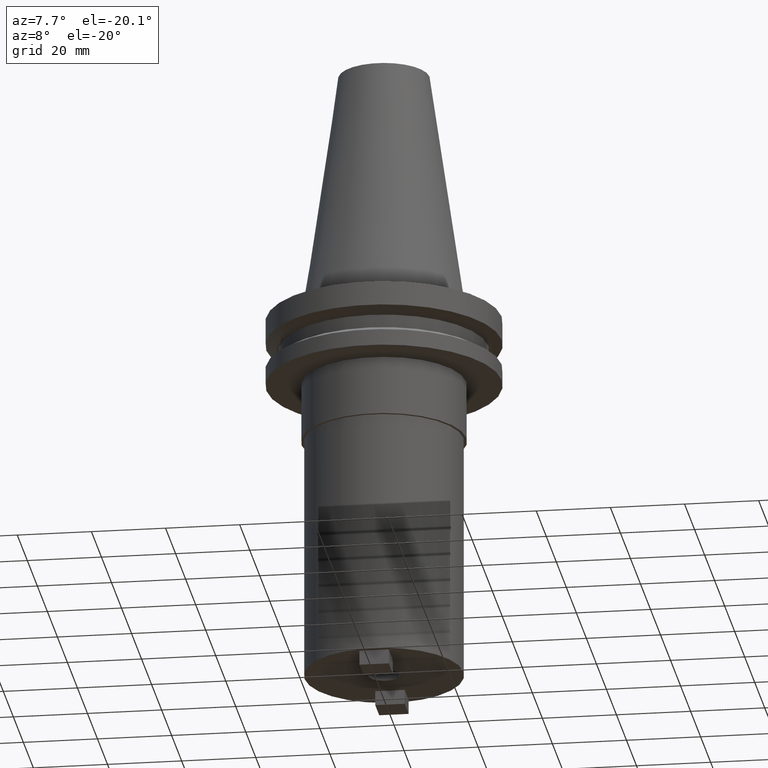
[diagram: clean part render]
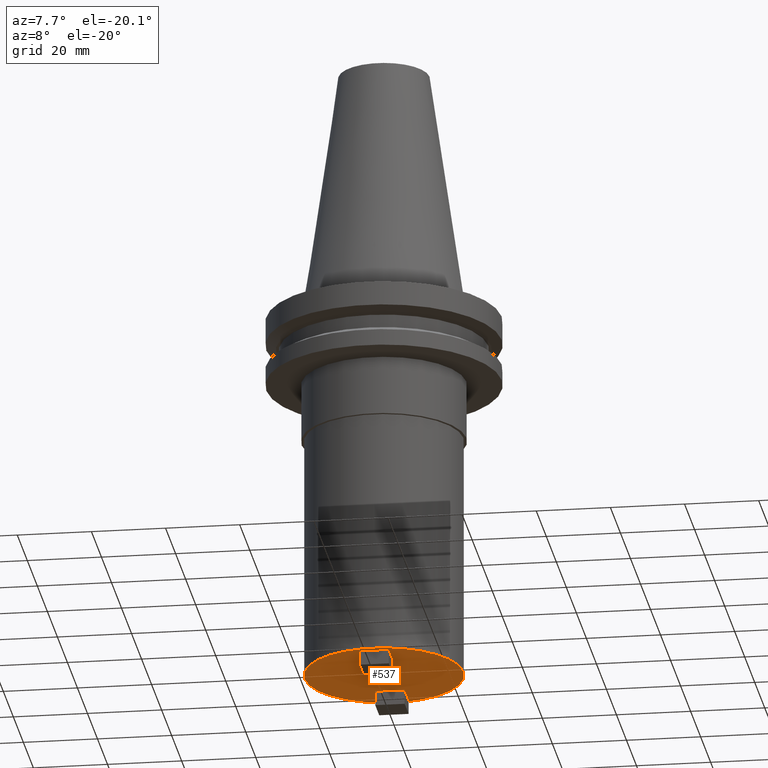
[diagram: same view with one face highlighted and labeled with its STEP entity id]
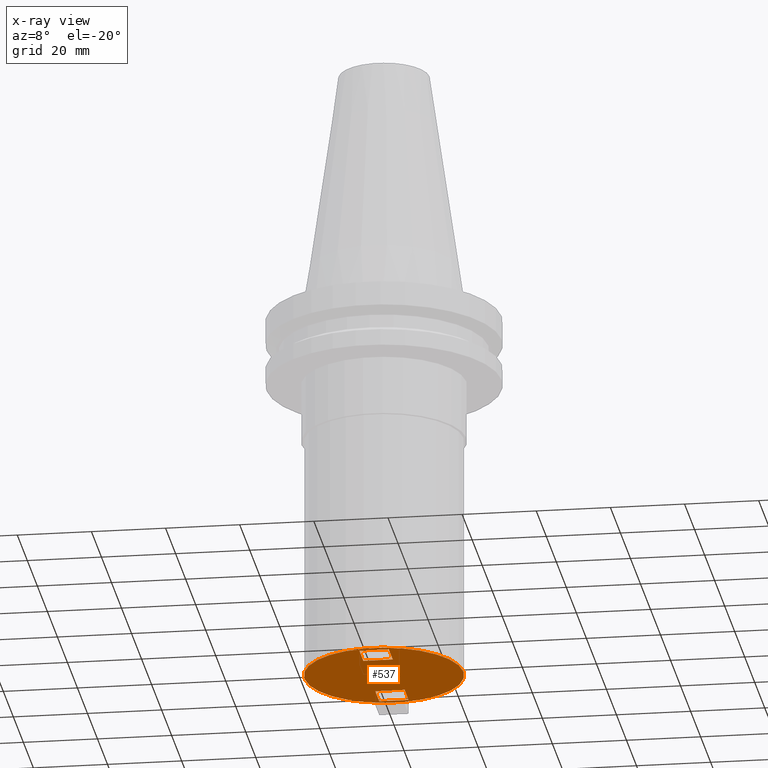
[diagram: x-ray of the same camera — body ghosted, the highlighted face saturated]
A machine part, auxiliary view. The second image highlights one B-rep face of the part: STEP entity #537.
The next image is the same camera in x-ray: the body ghosted, the highlighted face saturated — about 0% of this face is hidden behind the body in this view.
In plain terms, the highlighted planar face has unit normal (0, -0, 1).
Its self-contained STEP definition (entity closure, byte-faithful):
#27 = CARTESIAN_POINT ( 'NONE',  ( 4.215000000000006075, 0.000000000000000000, -101.5999999999999943 ) ) ;
#32 = DIRECTION ( 'NONE',  ( -0.000000000000000000, 1.000000000000000000, -0.000000000000000000 ) ) ;
#35 = CARTESIAN_POINT ( 'NONE',  ( -3.965000000000004299, 19.84000000000000341, -101.5999999999999943 ) ) ;
#39 = DIRECTION ( 'NONE',  ( 1.000000000000000000, 0.000000000000000000, 0.000000000000000000 ) ) ;
#41 = CARTESIAN_POINT ( 'NONE',  ( 3.964999999999995417, 19.84000000000000341, -101.5999999999999943 ) ) ;
#46 = FACE_BOUND ( 'NONE', #161, .T. ) ;
#53 = VECTOR ( 'NONE', #224, 1000.000000000000000 ) ;
#55 = AXIS2_PLACEMENT_3D ( 'NONE', #59, #805, #411 ) ;
#56 = ORIENTED_EDGE ( 'NONE', *, *, #363, .F. ) ;
#59 = CARTESIAN_POINT ( 'NONE',  ( 0.000000000000000000, 0.000000000000000000, -101.5999999999999943 ) ) ;
#69 = EDGE_CURVE ( 'NONE', #685, #597, #140, .T. ) ;
#75 = VECTOR ( 'NONE', #378, 1000.000000000000000 ) ;
#76 = AXIS2_PLACEMENT_3D ( 'NONE', #733, #1080, #575 ) ;
#83 = VERTEX_POINT ( 'NONE', #714 ) ;
#108 = EDGE_CURVE ( 'NONE', #248, #310, #1044, .T. ) ;
#116 = VERTEX_POINT ( 'NONE', #470 ) ;
#117 = EDGE_LOOP ( 'NONE', ( #1035, #1005 ) ) ;
#118 = CARTESIAN_POINT ( 'NONE',  ( 3.964999999999995417, 11.91000000000000192, -101.5999999999999943 ) ) ;
#124 = LINE ( 'NONE', #41, #75 ) ;
#130 = FACE_OUTER_BOUND ( 'NONE', #117, .T. ) ;
#134 = DIRECTION ( 'NONE',  ( -0.000000000000000000, 1.000000000000000000, -0.000000000000000000 ) ) ;
#140 = CIRCLE ( 'NONE', #929, 21.44999999999999929 ) ;
#154 = ORIENTED_EDGE ( 'NONE', *, *, #108, .F. ) ;
#161 = EDGE_LOOP ( 'NONE', ( #456, #901 ) ) ;
#188 = DIRECTION ( 'NONE',  ( -1.000000000000000000, 0.000000000000000000, 0.000000000000000000 ) ) ;
#192 = CARTESIAN_POINT ( 'NONE',  ( 3.964999999999995417, 19.84000000000000341, -101.5999999999999943 ) ) ;
#206 = ORIENTED_EDGE ( 'NONE', *, *, #706, .F. ) ;
#209 = VECTOR ( 'NONE', #855, 1000.000000000000000 ) ;
#224 = DIRECTION ( 'NONE',  ( -1.000000000000000000, -8.750181467726642358E-16, 0.000000000000000000 ) ) ;
#244 = DIRECTION ( 'NONE',  ( 0.000000000000000000, -1.000000000000000000, 0.000000000000000000 ) ) ;
#248 = VERTEX_POINT ( 'NONE', #995 ) ;
#308 = CARTESIAN_POINT ( 'NONE',  ( -3.965000000000004299, -11.90999999999999837, -101.5999999999999943 ) ) ;
#310 = VERTEX_POINT ( 'NONE', #849 ) ;
#314 = DIRECTION ( 'NONE',  ( 1.000000000000000000, 0.000000000000000000, 0.000000000000000000 ) ) ;
#316 = VECTOR ( 'NONE', #134, 1000.000000000000000 ) ;
#323 = CARTESIAN_POINT ( 'NONE',  ( -21.44999999999999929, 2.626867384171072557E-15, -101.5999999999999943 ) ) ;
#340 = DIRECTION ( 'NONE',  ( 1.000000000000000000, -0.000000000000000000, -0.000000000000000000 ) ) ;
#361 = LINE ( 'NONE', #118, #514 ) ;
#363 = EDGE_CURVE ( 'NONE', #83, #837, #361, .T. ) ;
#375 = EDGE_CURVE ( 'NONE', #587, #83, #931, .T. ) ;
#378 = DIRECTION ( 'NONE',  ( 1.000000000000000000, -0.000000000000000000, -0.000000000000000000 ) ) ;
#384 = DIRECTION ( 'NONE',  ( 1.000000000000000000, 0.000000000000000000, 0.000000000000000000 ) ) ;
#385 = AXIS2_PLACEMENT_3D ( 'NONE', #697, #787, #384 ) ;
#393 = CARTESIAN_POINT ( 'NONE',  ( 3.964999999999995417, 19.84000000000000341, -101.5999999999999943 ) ) ;
#394 = EDGE_CURVE ( 'NONE', #837, #457, #609, .T. ) ;
#407 = ORIENTED_EDGE ( 'NONE', *, *, #721, .F. ) ;
#411 = DIRECTION ( 'NONE',  ( 1.000000000000000000, 0.000000000000000000, 0.000000000000000000 ) ) ;
#422 = LINE ( 'NONE', #654, #628 ) ;
#439 = ORIENTED_EDGE ( 'NONE', *, *, #375, .F. ) ;
#456 = ORIENTED_EDGE ( 'NONE', *, *, #896, .T. ) ;
#457 = VERTEX_POINT ( 'NONE', #35 ) ;
#461 = VECTOR ( 'NONE', #32, 1000.000000000000000 ) ;
#463 = DIRECTION ( 'NONE',  ( -0.000000000000000000, -0.000000000000000000, 1.000000000000000000 ) ) ;
#470 = CARTESIAN_POINT ( 'NONE',  ( -4.215000000000006075, 5.161886258406101444E-16, -101.5999999999999943 ) ) ;
#490 = LINE ( 'NONE', #892, #871 ) ;
#501 = EDGE_CURVE ( 'NONE', #457, #587, #124, .T. ) ;
#514 = VECTOR ( 'NONE', #188, 1000.000000000000000 ) ;
#527 = EDGE_LOOP ( 'NONE', ( #154, #407, #206, #830 ) ) ;
#537 = ADVANCED_FACE ( 'NONE', ( #623, #130, #46, #701 ), #1047, .F. ) ;
#544 = AXIS2_PLACEMENT_3D ( 'NONE', #1003, #581, #314 ) ;
#548 = VERTEX_POINT ( 'NONE', #878 ) ;
#575 = DIRECTION ( 'NONE',  ( 1.000000000000000000, 0.000000000000000000, 0.000000000000000000 ) ) ;
#581 = DIRECTION ( 'NONE',  ( -0.000000000000000000, -0.000000000000000000, 1.000000000000000000 ) ) ;
#587 = VERTEX_POINT ( 'NONE', #393 ) ;
#597 = VERTEX_POINT ( 'NONE', #323 ) ;
#607 = VERTEX_POINT ( 'NONE', #977 ) ;
#609 = LINE ( 'NONE', #776, #461 ) ;
#620 = CARTESIAN_POINT ( 'NONE',  ( 0.000000000000000000, 0.000000000000000000, -101.5999999999999943 ) ) ;
#623 = FACE_BOUND ( 'NONE', #765, .T. ) ;
#628 = VECTOR ( 'NONE', #340, 1000.000000000000000 ) ;
#644 = CIRCLE ( 'NONE', #544, 4.215000000000006075 ) ;
#654 = CARTESIAN_POINT ( 'NONE',  ( 3.964999999999997193, -11.90999999999999837, -101.5999999999999943 ) ) ;
#659 = ORIENTED_EDGE ( 'NONE', *, *, #394, .F. ) ;
#685 = VERTEX_POINT ( 'NONE', #1001 ) ;
#691 = CIRCLE ( 'NONE', #76, 4.215000000000006075 ) ;
#697 = CARTESIAN_POINT ( 'NONE',  ( 0.000000000000000000, 21.44999999999999929, -101.5999999999999943 ) ) ;
#701 = FACE_BOUND ( 'NONE', #527, .T. ) ;
#706 = EDGE_CURVE ( 'NONE', #548, #607, #490, .T. ) ;
#708 = CIRCLE ( 'NONE', #55, 21.44999999999999929 ) ;
#714 = CARTESIAN_POINT ( 'NONE',  ( 3.964999999999995417, 11.91000000000000192, -101.5999999999999943 ) ) ;
#721 = EDGE_CURVE ( 'NONE', #607, #248, #993, .T. ) ;
#733 = CARTESIAN_POINT ( 'NONE',  ( 0.000000000000000000, 0.000000000000000000, -101.5999999999999943 ) ) ;
#765 = EDGE_LOOP ( 'NONE', ( #659, #56, #439, #1071 ) ) ;
#776 = CARTESIAN_POINT ( 'NONE',  ( -3.965000000000004299, 19.84000000000000341, -101.5999999999999943 ) ) ;
#778 = EDGE_CURVE ( 'NONE', #597, #685, #708, .T. ) ;
#787 = DIRECTION ( 'NONE',  ( 0.000000000000000000, -0.000000000000000000, 1.000000000000000000 ) ) ;
#805 = DIRECTION ( 'NONE',  ( -0.000000000000000000, -0.000000000000000000, 1.000000000000000000 ) ) ;
#826 = CARTESIAN_POINT ( 'NONE',  ( -3.965000000000004299, 11.91000000000000192, -101.5999999999999943 ) ) ;
#830 = ORIENTED_EDGE ( 'NONE', *, *, #862, .F. ) ;
#835 = CARTESIAN_POINT ( 'NONE',  ( 3.964999999999997193, -19.83999999999999631, -101.5999999999999943 ) ) ;
#837 = VERTEX_POINT ( 'NONE', #826 ) ;
#849 = CARTESIAN_POINT ( 'NONE',  ( -3.965000000000004299, -11.91000000000000014, -101.5999999999999943 ) ) ;
#855 = DIRECTION ( 'NONE',  ( 0.000000000000000000, -1.000000000000000000, 0.000000000000000000 ) ) ;
#862 = EDGE_CURVE ( 'NONE', #310, #548, #422, .T. ) ;
#871 = VECTOR ( 'NONE', #244, 1000.000000000000000 ) ;
#878 = CARTESIAN_POINT ( 'NONE',  ( 3.964999999999997193, -11.91000000000000014, -101.5999999999999943 ) ) ;
#892 = CARTESIAN_POINT ( 'NONE',  ( 3.964999999999997193, -11.90999999999999837, -101.5999999999999943 ) ) ;
#896 = EDGE_CURVE ( 'NONE', #918, #116, #691, .T. ) ;
#901 = ORIENTED_EDGE ( 'NONE', *, *, #1078, .T. ) ;
#918 = VERTEX_POINT ( 'NONE', #27 ) ;
#929 = AXIS2_PLACEMENT_3D ( 'NONE', #620, #463, #39 ) ;
#931 = LINE ( 'NONE', #192, #209 ) ;
#977 = CARTESIAN_POINT ( 'NONE',  ( 3.964999999999997193, -19.83999999999998920, -101.5999999999999943 ) ) ;
#993 = LINE ( 'NONE', #835, #53 ) ;
#995 = CARTESIAN_POINT ( 'NONE',  ( -3.965000000000004299, -19.84000000000000341, -101.5999999999999943 ) ) ;
#1001 = CARTESIAN_POINT ( 'NONE',  ( 21.44999999999999929, 0.000000000000000000, -101.5999999999999943 ) ) ;
#1003 = CARTESIAN_POINT ( 'NONE',  ( 0.000000000000000000, 0.000000000000000000, -101.5999999999999943 ) ) ;
#1005 = ORIENTED_EDGE ( 'NONE', *, *, #778, .F. ) ;
#1035 = ORIENTED_EDGE ( 'NONE', *, *, #69, .F. ) ;
#1044 = LINE ( 'NONE', #308, #316 ) ;
#1047 = PLANE ( 'NONE',  #385 ) ;
#1071 = ORIENTED_EDGE ( 'NONE', *, *, #501, .F. ) ;
#1078 = EDGE_CURVE ( 'NONE', #116, #918, #644, .T. ) ;
#1080 = DIRECTION ( 'NONE',  ( -0.000000000000000000, -0.000000000000000000, 1.000000000000000000 ) ) ;